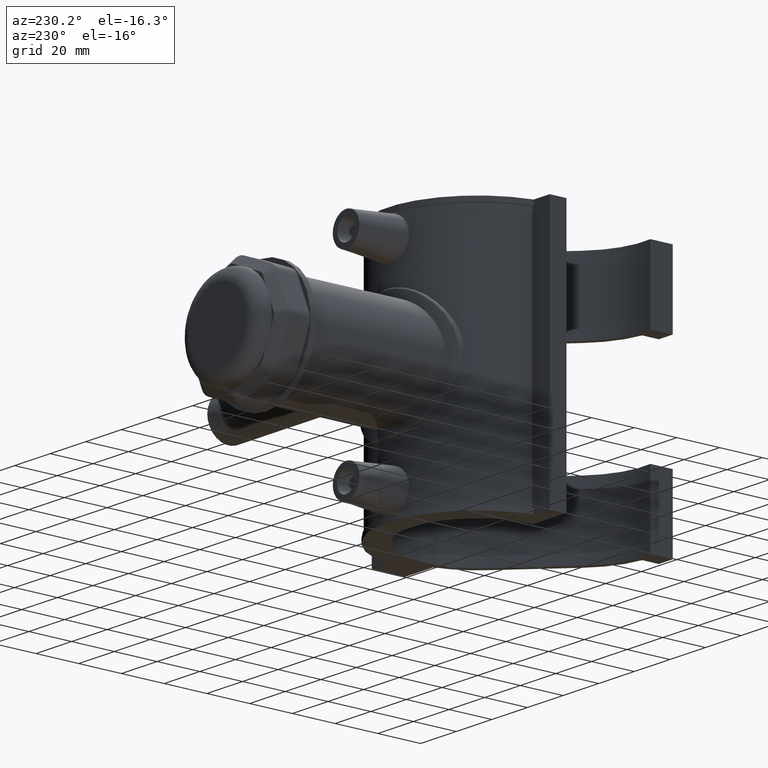
[diagram: clean part render]
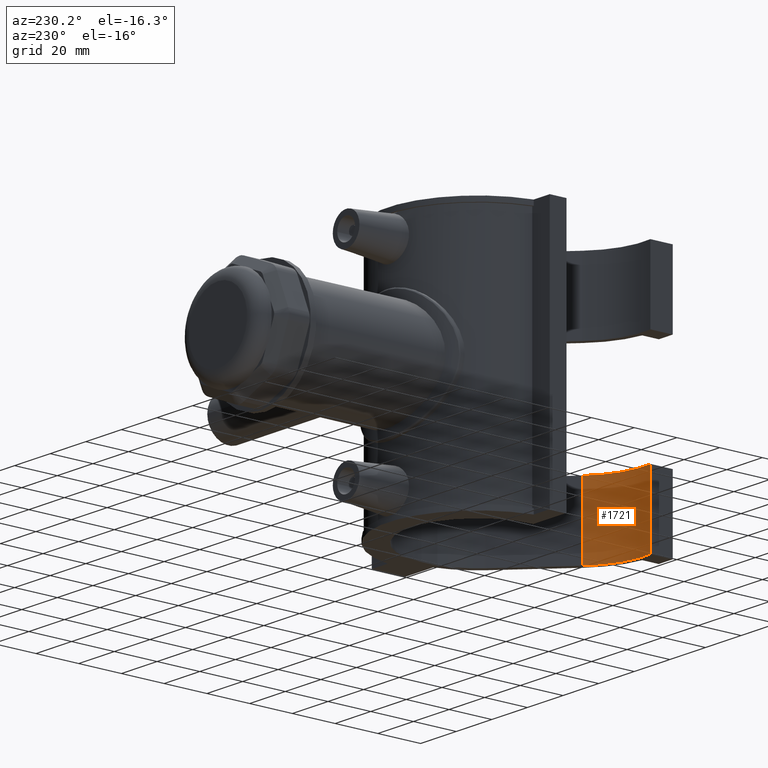
[diagram: same view with one face highlighted and labeled with its STEP entity id]
A machine part, auxiliary view. The second image highlights one B-rep face of the part: STEP entity #1721.
In plain terms, the highlighted cylindrical surface (partial cylindrical patch) has radius 32.3751 mm, axis along (0, 0, -1).
Its self-contained STEP definition (entity closure, byte-faithful):
#135=LINE('',#3452,#278);
#136=LINE('',#3456,#279);
#278=VECTOR('',#2329,33.8);
#279=VECTOR('',#2334,33.8);
#438=CIRCLE('',#1886,32.375103956558);
#444=CIRCLE('',#1895,32.375103956558);
#561=FACE_OUTER_BOUND('',#691,.T.);
#691=EDGE_LOOP('',(#1500,#1501,#1502,#1503));
#857=VERTEX_POINT('',#3424);
#859=VERTEX_POINT('',#3427);
#868=VERTEX_POINT('',#3450);
#869=VERTEX_POINT('',#3454);
#1073=EDGE_CURVE('',#859,#857,#438,.T.);
#1086=EDGE_CURVE('',#857,#868,#135,.T.);
#1087=EDGE_CURVE('',#869,#868,#444,.T.);
#1088=EDGE_CURVE('',#859,#869,#136,.T.);
#1500=ORIENTED_EDGE('',*,*,#1073,.T.);
#1501=ORIENTED_EDGE('',*,*,#1086,.T.);
#1502=ORIENTED_EDGE('',*,*,#1087,.F.);
#1503=ORIENTED_EDGE('',*,*,#1088,.F.);
#1631=CYLINDRICAL_SURFACE('',#1894,32.375103956558);
#1721=ADVANCED_FACE('',(#561),#1631,.F.);
#1886=AXIS2_PLACEMENT_3D('',#3428,#2306,#2307);
#1894=AXIS2_PLACEMENT_3D('',#3453,#2330,#2331);
#1895=AXIS2_PLACEMENT_3D('',#3455,#2332,#2333);
#2306=DIRECTION('center_axis',(7.47663076451472E-16,7.47663074675932E-16,
1.));
#2307=DIRECTION('ref_axis',(0.128765786070608,0.991675033636331,0.));
#2329=DIRECTION('',(0.,0.,-1.));
#2330=DIRECTION('center_axis',(0.,0.,-1.));
#2331=DIRECTION('ref_axis',(0.128765786070608,0.991675033636331,0.));
#2332=DIRECTION('center_axis',(0.,0.,1.));
#2333=DIRECTION('ref_axis',(0.128765786070608,0.991675033636331,0.));
#2334=DIRECTION('',(0.,0.,-1.));
#3424=CARTESIAN_POINT('',(-1.83848658521296,-47.6237976250849,-25.2));
#3427=CARTESIAN_POINT('',(-28.8999478174158,-56.8367243537001,-25.2));
#3428=CARTESIAN_POINT('Origin',(-24.731142107332,-24.7311420486008,-25.2));
#3450=CARTESIAN_POINT('',(-1.83848658521296,-47.6237976250849,-59.));
#3452=CARTESIAN_POINT('',(-1.83848658521296,-47.6237976250849,59.));
#3453=CARTESIAN_POINT('Origin',(-24.731142107332,-24.7311420486008,59.));
#3454=CARTESIAN_POINT('',(-28.8999478174158,-56.8367243537001,-59.));
#3455=CARTESIAN_POINT('Origin',(-24.731142107332,-24.7311420486008,-59.));
#3456=CARTESIAN_POINT('',(-28.8999478174158,-56.8367243537001,59.));